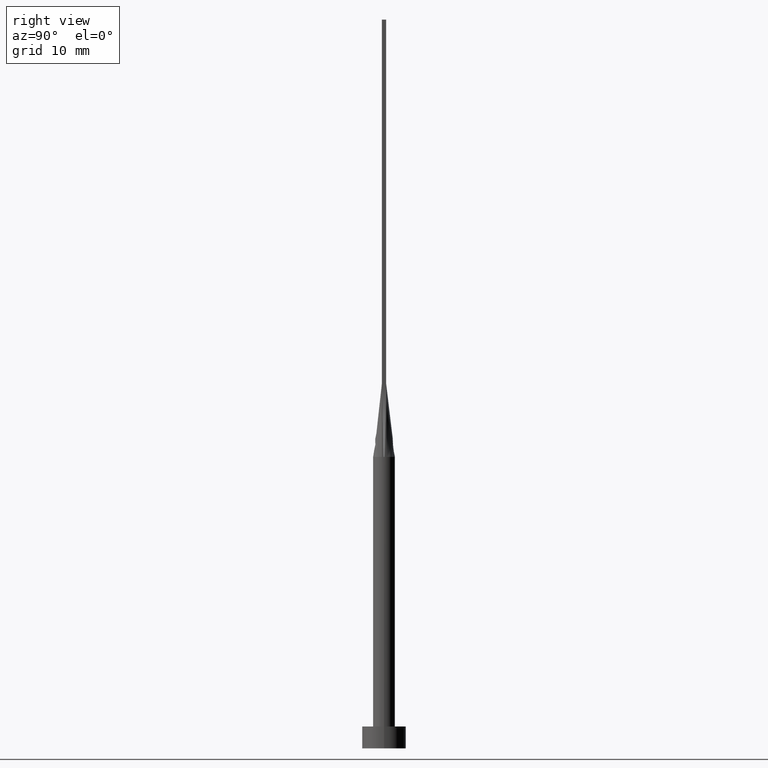
[diagram: clean part render]
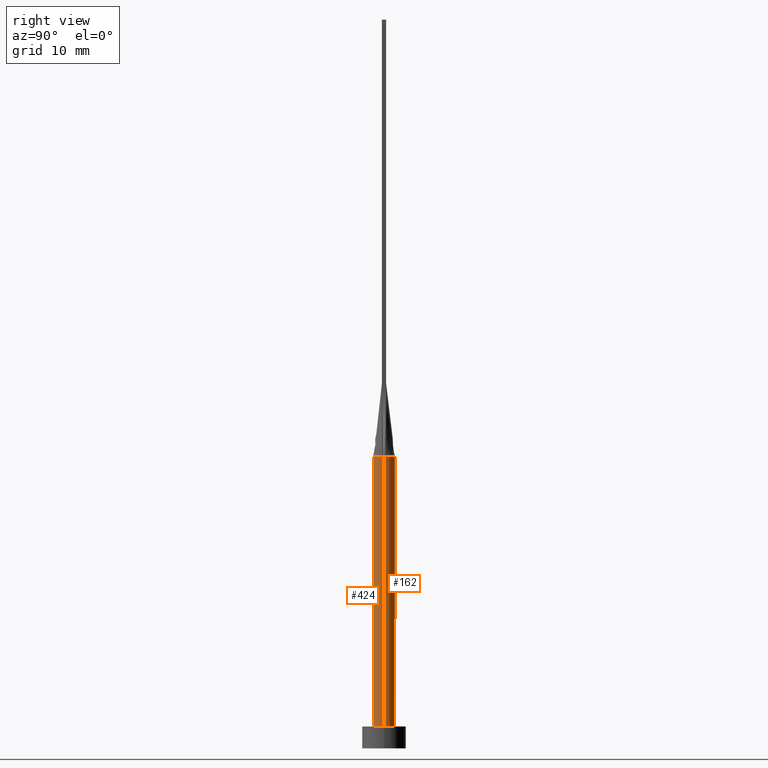
[diagram: same view with one multi-face feature highlighted, each face labeled with its STEP entity id]
A machine part, right view. The highlighted faces form ONE feature: a constant-radius fillet chain: 2 tangent blend faces with common blend radius 1.5 mm. The faces share edges in the B-rep.
Their STEP definitions:
[1] entity #162 (Cylinder):
#16 = AXIS2_PLACEMENT_3D ( 'NONE', #405, #225, #267 ) ;
#27 = EDGE_LOOP ( 'NONE', ( #302, #345, #118, #165, #173, #261 ) ) ;
#29 = DIRECTION ( 'NONE',  ( 1.000000000000000000, 0.000000000000000000, 0.000000000000000000 ) ) ;
#36 = CARTESIAN_POINT ( 'NONE',  ( 1.441093865018553410, 0.4338058282182615244, 39.99999999999999289 ) ) ;
#40 = CARTESIAN_POINT ( 'NONE',  ( 1.466825456746648992, 0.3143198820638501978, 40.00000000000000000 ) ) ;
#43 = CARTESIAN_POINT ( 'NONE',  ( -1.167251067653078289, 0.9579686032593087708, 40.00000000000003553 ) ) ;
#71 = CARTESIAN_POINT ( 'NONE',  ( 1.500000000000000222, 1.836970198721030181E-16, 40.00000000000000000 ) ) ;
#75 = VERTEX_POINT ( 'NONE', #351 ) ;
#85 = CARTESIAN_POINT ( 'NONE',  ( 0.4035854070682468042, 1.457676878506885654, 39.99999999999999289 ) ) ;
#95 = DIRECTION ( 'NONE',  ( 1.000000000000000000, 0.000000000000000000, 0.000000000000000000 ) ) ;
#100 = EDGE_CURVE ( 'NONE', #116, #324, #328, .T. ) ;
#105 = DIRECTION ( 'NONE',  ( 1.000000000000000000, 0.000000000000000000, 0.000000000000000000 ) ) ;
#116 = VERTEX_POINT ( 'NONE', #574 ) ;
#118 = ORIENTED_EDGE ( 'NONE', *, *, #275, .T. ) ;
#119 = B_SPLINE_CURVE_WITH_KNOTS ( 'NONE', 3,
 ( #40, #36, #191, #361, #141, #185, #355, #85, #189, #270, #542, #446, #313, #43, #489, #442, #265, #231 ),
 .UNSPECIFIED., .F., .F.,
 ( 4, 2, 2, 2, 2, 2, 2, 2, 4 ),
 ( 0.000000000000000000, 0.1249999999999999445, 0.2499999999999998890, 0.3749999999999998890, 0.4999999999999998890, 0.6249999999999998890, 0.7500000000000000000, 0.8749999999999998890, 1.000000000000000000 ),
 .UNSPECIFIED. ) ;
#123 = DIRECTION ( 'NONE',  ( 0.000000000000000000, 0.000000000000000000, 1.000000000000000000 ) ) ;
#125 = CIRCLE ( 'NONE', #444, 1.500000000000000222 ) ;
#131 = DIRECTION ( 'NONE',  ( -0.000000000000000000, -0.000000000000000000, -1.000000000000000000 ) ) ;
#141 = CARTESIAN_POINT ( 'NONE',  ( 1.167251067653077401, 0.9579686032593092149, 40.00000000000002132 ) ) ;
#162 = ADVANCED_FACE ( 'NONE', ( #316 ), #534, .T. ) ;
#165 = ORIENTED_EDGE ( 'NONE', *, *, #342, .F. ) ;
#173 = ORIENTED_EDGE ( 'NONE', *, *, #100, .F. ) ;
#185 = CARTESIAN_POINT ( 'NONE',  ( 0.9173979595380679086, 1.199399801402031285, 40.00000000000001421 ) ) ;
#187 = LINE ( 'NONE', #71, #544 ) ;
#189 = CARTESIAN_POINT ( 'NONE',  ( 0.2021039475585061640, 1.500000000000000222, 40.00000000000000711 ) ) ;
#191 = CARTESIAN_POINT ( 'NONE',  ( 1.398339371956842880, 0.5625704264602660043, 40.00000000000001421 ) ) ;
#215 = EDGE_CURVE ( 'NONE', #75, #116, #119, .T. ) ;
#225 = DIRECTION ( 'NONE',  ( -0.000000000000000000, -0.000000000000000000, -1.000000000000000000 ) ) ;
#227 = LINE ( 'NONE', #398, #263 ) ;
#231 = CARTESIAN_POINT ( 'NONE',  ( -1.466842056764351865, 0.3143233427268645186, 40.00000000000000000 ) ) ;
#240 = CARTESIAN_POINT ( 'NONE',  ( -1.500000000000000222, 0.000000000000000000, 3.000000000000000000 ) ) ;
#261 = ORIENTED_EDGE ( 'NONE', *, *, #215, .F. ) ;
#263 = VECTOR ( 'NONE', #131, 1000.000000000000000 ) ;
#265 = CARTESIAN_POINT ( 'NONE',  ( -1.441093865018553410, 0.4338058282182611913, 39.99999999999997868 ) ) ;
#267 = DIRECTION ( 'NONE',  ( -1.000000000000000000, 0.000000000000000000, 0.000000000000000000 ) ) ;
#270 = CARTESIAN_POINT ( 'NONE',  ( -0.2021039475585064971, 1.499999999999999556, 40.00000000000000000 ) ) ;
#275 = EDGE_CURVE ( 'NONE', #390, #470, #125, .T. ) ;
#290 = DIRECTION ( 'NONE',  ( 0.000000000000000000, 0.000000000000000000, 1.000000000000000000 ) ) ;
#302 = ORIENTED_EDGE ( 'NONE', *, *, #475, .F. ) ;
#313 = CARTESIAN_POINT ( 'NONE',  ( -0.9173979595380679086, 1.199399801402030397, 40.00000000000000000 ) ) ;
#316 = FACE_OUTER_BOUND ( 'NONE', #27, .T. ) ;
#324 = VERTEX_POINT ( 'NONE', #354 ) ;
#328 = CIRCLE ( 'NONE', #364, 1.500000000000000222 ) ;
#342 = EDGE_CURVE ( 'NONE', #324, #470, #227, .T. ) ;
#345 = ORIENTED_EDGE ( 'NONE', *, *, #440, .T. ) ;
#351 = CARTESIAN_POINT ( 'NONE',  ( 1.466825456746648992, 0.3143198820638501978, 40.00000000000000000 ) ) ;
#354 = CARTESIAN_POINT ( 'NONE',  ( -1.499815225192203672, -3.718617114388451945E-16, 40.00000000000000000 ) ) ;
#355 = CARTESIAN_POINT ( 'NONE',  ( 0.7614511870148451544, 1.306864626778804883, 40.00000000000000000 ) ) ;
#361 = CARTESIAN_POINT ( 'NONE',  ( 1.261673556793541540, 0.8246322331683844098, 40.00000000000000000 ) ) ;
#364 = AXIS2_PLACEMENT_3D ( 'NONE', #523, #123, #29 ) ;
#365 = CIRCLE ( 'NONE', #564, 1.500000000000000222 ) ;
#390 = VERTEX_POINT ( 'NONE', #391 ) ;
#391 = CARTESIAN_POINT ( 'NONE',  ( 1.500000000000000222, 1.836970198721030181E-16, 3.000000000000000000 ) ) ;
#398 = CARTESIAN_POINT ( 'NONE',  ( -1.500000000000000222, 0.000000000000000000, 40.00000000000000000 ) ) ;
#405 = CARTESIAN_POINT ( 'NONE',  ( 0.000000000000000000, 0.000000000000000000, 40.00000000000000000 ) ) ;
#431 = DIRECTION ( 'NONE',  ( -0.000000000000000000, -0.000000000000000000, -1.000000000000000000 ) ) ;
#440 = EDGE_CURVE ( 'NONE', #519, #390, #187, .T. ) ;
#442 = CARTESIAN_POINT ( 'NONE',  ( -1.398339371956843102, 0.5625704264602656712, 40.00000000000000711 ) ) ;
#444 = AXIS2_PLACEMENT_3D ( 'NONE', #512, #498, #105 ) ;
#446 = CARTESIAN_POINT ( 'NONE',  ( -0.7614511870148460426, 1.306864626778804661, 40.00000000000000000 ) ) ;
#456 = CARTESIAN_POINT ( 'NONE',  ( 0.000000000000000000, 0.000000000000000000, 40.00000000000000000 ) ) ;
#470 = VERTEX_POINT ( 'NONE', #240 ) ;
#475 = EDGE_CURVE ( 'NONE', #519, #75, #365, .T. ) ;
#489 = CARTESIAN_POINT ( 'NONE',  ( -1.261673556793542872, 0.8246322331683846318, 40.00000000000002132 ) ) ;
#498 = DIRECTION ( 'NONE',  ( 0.000000000000000000, 0.000000000000000000, 1.000000000000000000 ) ) ;
#512 = CARTESIAN_POINT ( 'NONE',  ( 0.000000000000000000, 0.000000000000000000, 3.000000000000000000 ) ) ;
#519 = VERTEX_POINT ( 'NONE', #549 ) ;
#523 = CARTESIAN_POINT ( 'NONE',  ( 0.000000000000000000, 0.000000000000000000, 40.00000000000000000 ) ) ;
#534 = CYLINDRICAL_SURFACE ( 'NONE', #16, 1.500000000000000222 ) ;
#542 = CARTESIAN_POINT ( 'NONE',  ( -0.4035854070682471928, 1.457676878506885432, 40.00000000000000711 ) ) ;
#544 = VECTOR ( 'NONE', #431, 1000.000000000000000 ) ;
#549 = CARTESIAN_POINT ( 'NONE',  ( 1.499815225192203672, 3.473831651285826596E-16, 40.00000000000000000 ) ) ;
#564 = AXIS2_PLACEMENT_3D ( 'NONE', #456, #290, #95 ) ;
#574 = CARTESIAN_POINT ( 'NONE',  ( -1.466842056764351865, 0.3143233427268645186, 40.00000000000000000 ) ) ;
[2] entity #424 (Cylinder):
#9 = CARTESIAN_POINT ( 'NONE',  ( 1.466854622690809462, -0.3143260906982852099, 40.00000000000000000 ) ) ;
#26 = CIRCLE ( 'NONE', #312, 1.500000000000000222 ) ;
#31 = DIRECTION ( 'NONE',  ( 0.000000000000000000, 0.000000000000000000, 1.000000000000000000 ) ) ;
#35 = DIRECTION ( 'NONE',  ( -0.000000000000000000, -0.000000000000000000, -1.000000000000000000 ) ) ;
#52 = DIRECTION ( 'NONE',  ( 0.000000000000000000, 0.000000000000000000, 1.000000000000000000 ) ) ;
#65 = EDGE_LOOP ( 'NONE', ( #393, #223, #203, #467, #525, #348 ) ) ;
#71 = CARTESIAN_POINT ( 'NONE',  ( 1.500000000000000222, 1.836970198721030181E-16, 40.00000000000000000 ) ) ;
#90 = DIRECTION ( 'NONE',  ( 1.000000000000000000, 3.552713678800500929E-15, 0.000000000000000000 ) ) ;
#101 = CARTESIAN_POINT ( 'NONE',  ( -1.466837926445876628, -0.3143226152917824034, 40.00000000000000000 ) ) ;
#131 = DIRECTION ( 'NONE',  ( -0.000000000000000000, -0.000000000000000000, -1.000000000000000000 ) ) ;
#140 = AXIS2_PLACEMENT_3D ( 'NONE', #457, #242, #204 ) ;
#187 = LINE ( 'NONE', #71, #544 ) ;
#203 = ORIENTED_EDGE ( 'NONE', *, *, #259, .F. ) ;
#204 = DIRECTION ( 'NONE',  ( 1.000000000000000000, 0.000000000000000000, 0.000000000000000000 ) ) ;
#218 = DIRECTION ( 'NONE',  ( 1.000000000000000000, 0.000000000000000000, 0.000000000000000000 ) ) ;
#220 = CARTESIAN_POINT ( 'NONE',  ( 0.000000000000000000, 0.000000000000000000, 3.000000000000000000 ) ) ;
#223 = ORIENTED_EDGE ( 'NONE', *, *, #529, .F. ) ;
#224 = DIRECTION ( 'NONE',  ( -1.000000000000000000, 0.000000000000000000, 0.000000000000000000 ) ) ;
#227 = LINE ( 'NONE', #398, #263 ) ;
#230 = AXIS2_PLACEMENT_3D ( 'NONE', #509, #52, #90 ) ;
#240 = CARTESIAN_POINT ( 'NONE',  ( -1.500000000000000222, 0.000000000000000000, 3.000000000000000000 ) ) ;
#242 = DIRECTION ( 'NONE',  ( 0.000000000000000000, 0.000000000000000000, 1.000000000000000000 ) ) ;
#251 = VERTEX_POINT ( 'NONE', #9 ) ;
#259 = EDGE_CURVE ( 'NONE', #516, #251, #453, .T. ) ;
#263 = VECTOR ( 'NONE', #131, 1000.000000000000000 ) ;
#312 = AXIS2_PLACEMENT_3D ( 'NONE', #373, #503, #363 ) ;
#324 = VERTEX_POINT ( 'NONE', #354 ) ;
#342 = EDGE_CURVE ( 'NONE', #324, #470, #227, .T. ) ;
#348 = ORIENTED_EDGE ( 'NONE', *, *, #455, .T. ) ;
#354 = CARTESIAN_POINT ( 'NONE',  ( -1.499815225192203672, -3.718617114388451945E-16, 40.00000000000000000 ) ) ;
#363 = DIRECTION ( 'NONE',  ( 1.000000000000000000, 0.000000000000000000, 0.000000000000000000 ) ) ;
#373 = CARTESIAN_POINT ( 'NONE',  ( 0.000000000000000000, 0.000000000000000000, 40.00000000000000000 ) ) ;
#387 = AXIS2_PLACEMENT_3D ( 'NONE', #220, #31, #218 ) ;
#390 = VERTEX_POINT ( 'NONE', #391 ) ;
#391 = CARTESIAN_POINT ( 'NONE',  ( 1.500000000000000222, 1.836970198721030181E-16, 3.000000000000000000 ) ) ;
#393 = ORIENTED_EDGE ( 'NONE', *, *, #440, .F. ) ;
#394 = AXIS2_PLACEMENT_3D ( 'NONE', #402, #35, #224 ) ;
#398 = CARTESIAN_POINT ( 'NONE',  ( -1.500000000000000222, 0.000000000000000000, 40.00000000000000000 ) ) ;
#402 = CARTESIAN_POINT ( 'NONE',  ( 0.000000000000000000, 0.000000000000000000, 40.00000000000000000 ) ) ;
#424 = ADVANCED_FACE ( 'NONE', ( #488 ), #434, .T. ) ;
#431 = DIRECTION ( 'NONE',  ( -0.000000000000000000, -0.000000000000000000, -1.000000000000000000 ) ) ;
#434 = CYLINDRICAL_SURFACE ( 'NONE', #394, 1.500000000000000222 ) ;
#440 = EDGE_CURVE ( 'NONE', #519, #390, #187, .T. ) ;
#453 = CIRCLE ( 'NONE', #140, 1.500000000000000222 ) ;
#455 = EDGE_CURVE ( 'NONE', #470, #390, #536, .T. ) ;
#457 = CARTESIAN_POINT ( 'NONE',  ( 0.000000000000000000, 0.000000000000000000, 40.00000000000000000 ) ) ;
#463 = CIRCLE ( 'NONE', #230, 1.500000000000000222 ) ;
#467 = ORIENTED_EDGE ( 'NONE', *, *, #521, .F. ) ;
#470 = VERTEX_POINT ( 'NONE', #240 ) ;
#488 = FACE_OUTER_BOUND ( 'NONE', #65, .T. ) ;
#503 = DIRECTION ( 'NONE',  ( 0.000000000000000000, 0.000000000000000000, 1.000000000000000000 ) ) ;
#509 = CARTESIAN_POINT ( 'NONE',  ( 0.000000000000000000, 0.000000000000000000, 40.00000000000000000 ) ) ;
#516 = VERTEX_POINT ( 'NONE', #101 ) ;
#519 = VERTEX_POINT ( 'NONE', #549 ) ;
#521 = EDGE_CURVE ( 'NONE', #324, #516, #26, .T. ) ;
#525 = ORIENTED_EDGE ( 'NONE', *, *, #342, .T. ) ;
#529 = EDGE_CURVE ( 'NONE', #251, #519, #463, .T. ) ;
#536 = CIRCLE ( 'NONE', #387, 1.500000000000000222 ) ;
#544 = VECTOR ( 'NONE', #431, 1000.000000000000000 ) ;
#549 = CARTESIAN_POINT ( 'NONE',  ( 1.499815225192203672, 3.473831651285826596E-16, 40.00000000000000000 ) ) ;